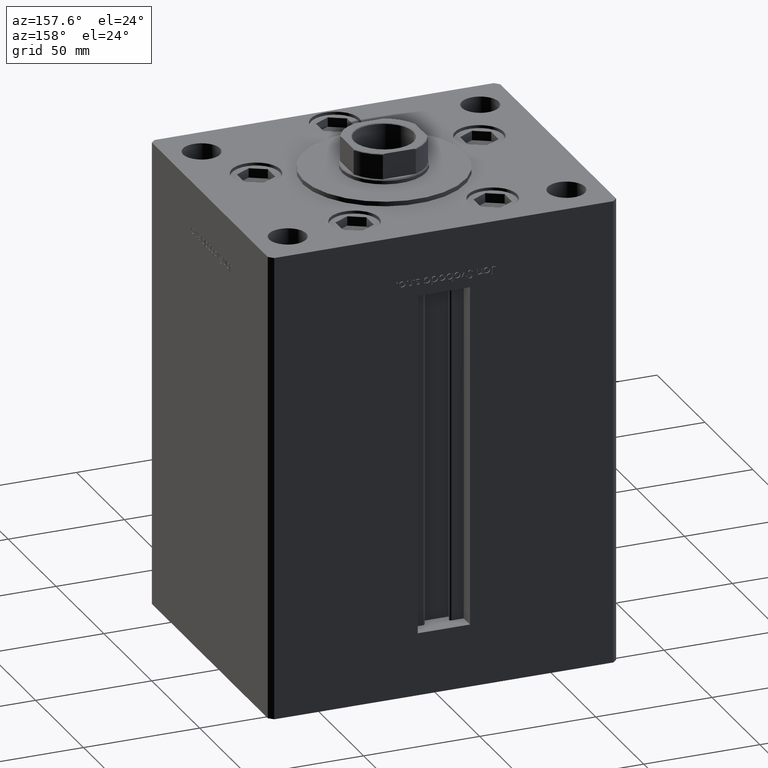
[diagram: clean part render]
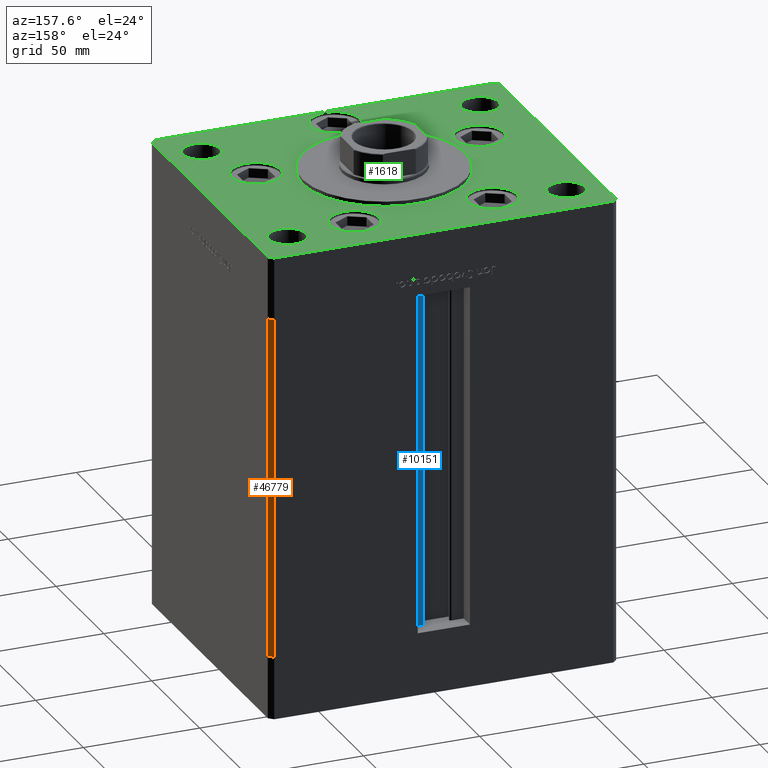
[diagram: same view with three faces highlighted in distinct colors, each labeled with its STEP entity id]
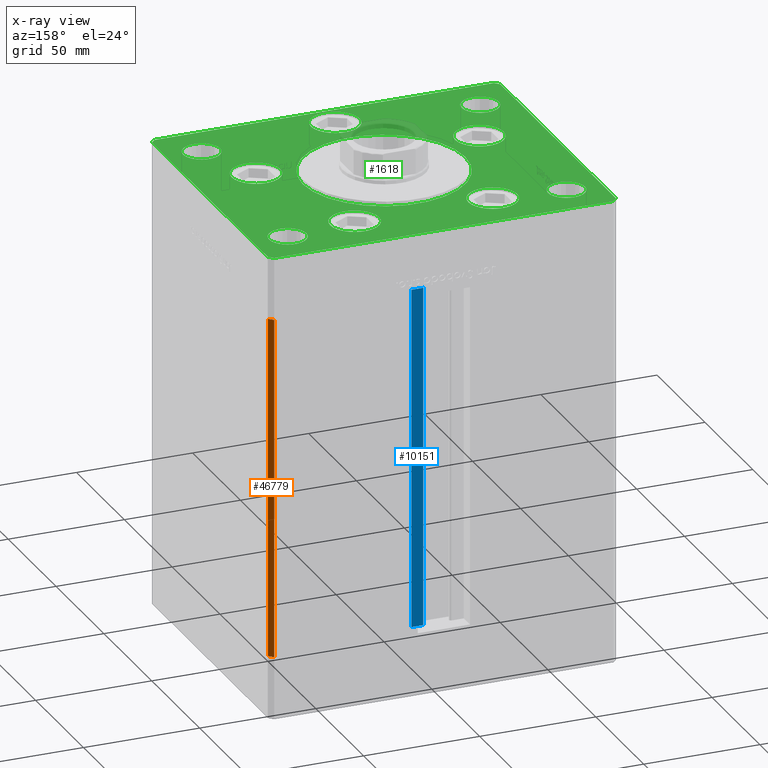
[diagram: x-ray of the same camera — body ghosted, the three highlighted faces saturated]
A machine part, auxiliary view with three faces highlighted in distinct colors.
The next image is the same camera in x-ray (body ghosted, the three faces saturated) — at least one of them is partly hidden behind the body in this view.
Their STEP definitions:

[orange] entity #46779 — the highlighted planar face has unit normal (0.7071, 0.7071, 0).
#5359 = CARTESIAN_POINT ( 'NONE',  ( 73.00000000000001421, 62.50000000000000000, 147.0000000000000000 ) ) ;
#6124 = ORIENTED_EDGE ( 'NONE', *, *, #37013, .T. ) ;
#7847 = CARTESIAN_POINT ( 'NONE',  ( 73.00000000000001421, 62.50000000000000000, 147.0000000000000000 ) ) ;
#8620 = VECTOR ( 'NONE', #28928, 1000.000000000000000 ) ;
#9455 = ORIENTED_EDGE ( 'NONE', *, *, #11162, .F. ) ;
#9590 = PLANE ( 'NONE',  #30280 ) ;
#11162 = EDGE_CURVE ( 'NONE', #40095, #22492, #22958, .T. ) ;
#11434 = EDGE_CURVE ( 'NONE', #17778, #40095, #36879, .T. ) ;
#11539 = EDGE_CURVE ( 'NONE', #17778, #22664, #16533, .T. ) ;
#12075 = DIRECTION ( 'NONE',  ( 0.7071067811865474617, -0.7071067811865474617, 0.000000000000000000 ) ) ;
#12666 = CARTESIAN_POINT ( 'NONE',  ( 73.00000000000001421, 62.50000000000000000, 147.0000000000000000 ) ) ;
#16533 = LINE ( 'NONE', #7847, #35783 ) ;
#17131 = DIRECTION ( 'NONE',  ( -0.000000000000000000, -0.000000000000000000, -1.000000000000000000 ) ) ;
#17778 = VERTEX_POINT ( 'NONE', #12666 ) ;
#19003 = DIRECTION ( 'NONE',  ( 0.7071067811865474617, -0.7071067811865474617, 0.000000000000000000 ) ) ;
#21451 = DIRECTION ( 'NONE',  ( 0.7071067811865475727, 0.7071067811865475727, -0.000000000000000000 ) ) ;
#21706 = DIRECTION ( 'NONE',  ( -0.7071067811865474617, 0.7071067811865474617, 0.000000000000000000 ) ) ;
#22492 = VERTEX_POINT ( 'NONE', #28408 ) ;
#22664 = VERTEX_POINT ( 'NONE', #25761 ) ;
#22958 = LINE ( 'NONE', #50883, #29900 ) ;
#25761 = CARTESIAN_POINT ( 'NONE',  ( 75.00000000000001421, 60.50000000000000000, 147.0000000000000000 ) ) ;
#26216 = ORIENTED_EDGE ( 'NONE', *, *, #11539, .T. ) ;
#28408 = CARTESIAN_POINT ( 'NONE',  ( 75.00000000000001421, 60.50000000000000000, 0.000000000000000000 ) ) ;
#28928 = DIRECTION ( 'NONE',  ( -0.000000000000000000, -0.000000000000000000, -1.000000000000000000 ) ) ;
#29443 = LINE ( 'NONE', #45516, #8620 ) ;
#29900 = VECTOR ( 'NONE', #19003, 1000.000000000000114 ) ;
#30280 = AXIS2_PLACEMENT_3D ( 'NONE', #5359, #21451, #21706 ) ;
#33720 = CARTESIAN_POINT ( 'NONE',  ( 73.00000000000001421, 62.50000000000000000, 147.0000000000000000 ) ) ;
#35783 = VECTOR ( 'NONE', #12075, 1000.000000000000114 ) ;
#36879 = LINE ( 'NONE', #33720, #49253 ) ;
#37013 = EDGE_CURVE ( 'NONE', #22664, #22492, #29443, .T. ) ;
#40095 = VERTEX_POINT ( 'NONE', #44582 ) ;
#44582 = CARTESIAN_POINT ( 'NONE',  ( 73.00000000000001421, 62.50000000000000000, 0.000000000000000000 ) ) ;
#45414 = FACE_OUTER_BOUND ( 'NONE', #50792, .T. ) ;
#45516 = CARTESIAN_POINT ( 'NONE',  ( 75.00000000000001421, 60.50000000000000000, 147.0000000000000000 ) ) ;
#46254 = ORIENTED_EDGE ( 'NONE', *, *, #11434, .F. ) ;
#46779 = ADVANCED_FACE ( 'NONE', ( #45414 ), #9590, .T. ) ;
#49253 = VECTOR ( 'NONE', #17131, 1000.000000000000000 ) ;
#50792 = EDGE_LOOP ( 'NONE', ( #9455, #46254, #26216, #6124 ) ) ;
#50883 = CARTESIAN_POINT ( 'NONE',  ( 73.00000000000001421, 62.50000000000000000, 0.000000000000000000 ) ) ;

[blue] entity #10151 — the highlighted planar face has unit normal (0, -1, 0).
#2125 = VECTOR ( 'NONE', #2924, 1000.000000000000000 ) ;
#2924 = DIRECTION ( 'NONE',  ( -1.000000000000000000, 0.000000000000000000, 0.000000000000000000 ) ) ;
#2998 = DIRECTION ( 'NONE',  ( -0.000000000000000000, -0.000000000000000000, 1.000000000000000000 ) ) ;
#3508 = CARTESIAN_POINT ( 'NONE',  ( 6.183333333334001480, 55.99999999999999289, 0.000000000000000000 ) ) ;
#3998 = LINE ( 'NONE', #32202, #34336 ) ;
#8395 = ORIENTED_EDGE ( 'NONE', *, *, #23654, .F. ) ;
#10151 = ADVANCED_FACE ( 'NONE', ( #24054 ), #47764, .F. ) ;
#11146 = EDGE_CURVE ( 'NONE', #22630, #33151, #38773, .T. ) ;
#19095 = DIRECTION ( 'NONE',  ( 1.000000000000000000, 0.000000000000000000, 0.000000000000000000 ) ) ;
#19466 = CARTESIAN_POINT ( 'NONE',  ( 6.183333333334001480, 55.99999999999999289, 0.000000000000000000 ) ) ;
#19494 = CARTESIAN_POINT ( 'NONE',  ( 6.183333333334001480, 55.99999999999999289, 147.0000000000000000 ) ) ;
#19636 = EDGE_CURVE ( 'NONE', #51210, #22630, #3998, .T. ) ;
#22630 = VERTEX_POINT ( 'NONE', #33668 ) ;
#23054 = CARTESIAN_POINT ( 'NONE',  ( 6.183333333334001480, 55.99999999999999289, 0.000000000000000000 ) ) ;
#23457 = CARTESIAN_POINT ( 'NONE',  ( 0.000000000000000000, 55.99999999999999289, 147.0000000000000000 ) ) ;
#23654 = EDGE_CURVE ( 'NONE', #51779, #51210, #27262, .T. ) ;
#24054 = FACE_OUTER_BOUND ( 'NONE', #47953, .T. ) ;
#24309 = DIRECTION ( 'NONE',  ( 0.000000000000000000, -1.000000000000000000, 0.000000000000000000 ) ) ;
#25467 = VECTOR ( 'NONE', #2998, 1000.000000000000000 ) ;
#27262 = LINE ( 'NONE', #23054, #33491 ) ;
#28014 = DIRECTION ( 'NONE',  ( 0.000000000000000000, -0.000000000000000000, -1.000000000000000000 ) ) ;
#29242 = ORIENTED_EDGE ( 'NONE', *, *, #43133, .T. ) ;
#31190 = LINE ( 'NONE', #3508, #25467 ) ;
#32202 = CARTESIAN_POINT ( 'NONE',  ( 11.25000000000000178, 55.99999999999999289, 0.000000000000000000 ) ) ;
#33151 = VERTEX_POINT ( 'NONE', #19494 ) ;
#33219 = CARTESIAN_POINT ( 'NONE',  ( 11.25000000000000178, 55.99999999999999289, 0.000000000000000000 ) ) ;
#33491 = VECTOR ( 'NONE', #19095, 1000.000000000000000 ) ;
#33668 = CARTESIAN_POINT ( 'NONE',  ( 11.25000000000000178, 55.99999999999999289, 147.0000000000000000 ) ) ;
#34336 = VECTOR ( 'NONE', #48268, 1000.000000000000000 ) ;
#38159 = ORIENTED_EDGE ( 'NONE', *, *, #19636, .F. ) ;
#38773 = LINE ( 'NONE', #23457, #2125 ) ;
#43133 = EDGE_CURVE ( 'NONE', #51779, #33151, #31190, .T. ) ;
#43363 = ORIENTED_EDGE ( 'NONE', *, *, #11146, .F. ) ;
#43821 = CARTESIAN_POINT ( 'NONE',  ( 6.183333333334001480, 55.99999999999999289, 0.000000000000000000 ) ) ;
#45012 = AXIS2_PLACEMENT_3D ( 'NONE', #43821, #24309, #28014 ) ;
#47764 = PLANE ( 'NONE',  #45012 ) ;
#47953 = EDGE_LOOP ( 'NONE', ( #38159, #8395, #29242, #43363 ) ) ;
#48268 = DIRECTION ( 'NONE',  ( -0.000000000000000000, -0.000000000000000000, 1.000000000000000000 ) ) ;
#51210 = VERTEX_POINT ( 'NONE', #33219 ) ;
#51779 = VERTEX_POINT ( 'NONE', #19466 ) ;

[green] entity #1618 — the highlighted planar face has unit normal (0, 0, 1).
#232 = DIRECTION ( 'NONE',  ( -0.000000000000000000, -0.000000000000000000, -1.000000000000000000 ) ) ;
#345 = VERTEX_POINT ( 'NONE', #33028 ) ;
#404 = EDGE_CURVE ( 'NONE', #5860, #36352, #40485, .T. ) ;
#874 = CARTESIAN_POINT ( 'NONE',  ( 60.00000000000000711, -45.00000000000000000, 0.000000000000000000 ) ) ;
#1205 = DIRECTION ( 'NONE',  ( 0.000000000000000000, 0.000000000000000000, 1.000000000000000000 ) ) ;
#1297 = EDGE_LOOP ( 'NONE', ( #50577, #8475 ) ) ;
#1400 = CARTESIAN_POINT ( 'NONE',  ( 60.00000000000000000, 45.00000000000000000, 0.000000000000000000 ) ) ;
#1593 = ORIENTED_EDGE ( 'NONE', *, *, #36532, .F. ) ;
#1618 = ADVANCED_FACE ( 'NONE', ( #30648, #17750, #46198, #46459, #18530, #34606, #22232, #34863, #10623, #33827, #22735 ), #42762, .T. ) ;
#1846 = AXIS2_PLACEMENT_3D ( 'NONE', #19775, #44278, #39804 ) ;
#1921 = VERTEX_POINT ( 'NONE', #2635 ) ;
#1934 = CARTESIAN_POINT ( 'NONE',  ( 0.000000000000000000, 0.000000000000000000, 0.000000000000000000 ) ) ;
#1949 = CARTESIAN_POINT ( 'NONE',  ( 73.00000000000001421, 62.50000000000000000, 0.000000000000000000 ) ) ;
#1959 = ORIENTED_EDGE ( 'NONE', *, *, #29607, .F. ) ;
#1985 = CARTESIAN_POINT ( 'NONE',  ( -19.23102073172061566, 41.43749999999997868, 0.000000000000000000 ) ) ;
#2097 = CARTESIAN_POINT ( 'NONE',  ( -73.00000000000001421, -62.50000000000002842, 0.000000000000000000 ) ) ;
#2136 = CARTESIAN_POINT ( 'NONE',  ( 58.58326112068523628, -16.99999999999998934, 0.000000000000000000 ) ) ;
#2635 = CARTESIAN_POINT ( 'NONE',  ( 37.58326112068522917, -16.99999999999998934, 0.000000000000000000 ) ) ;
#3009 = CARTESIAN_POINT ( 'NONE',  ( 35.00000000000000711, -2.652630106891490698E-15, 0.000000000000000000 ) ) ;
#3724 = VERTEX_POINT ( 'NONE', #18277 ) ;
#3764 = EDGE_CURVE ( 'NONE', #36352, #5860, #43941, .T. ) ;
#3816 = DIRECTION ( 'NONE',  ( 1.000000000000000000, 0.000000000000000000, 0.000000000000000000 ) ) ;
#3855 = VERTEX_POINT ( 'NONE', #50673 ) ;
#3989 = CIRCLE ( 'NONE', #33458, 8.000000000000007105 ) ;
#4144 = CARTESIAN_POINT ( 'NONE',  ( -48.08326112068523628, -16.99999999999998934, 0.000000000000000000 ) ) ;
#5485 = EDGE_CURVE ( 'NONE', #44121, #12105, #8669, .T. ) ;
#5860 = VERTEX_POINT ( 'NONE', #25541 ) ;
#5950 = AXIS2_PLACEMENT_3D ( 'NONE', #19288, #31409, #46970 ) ;
#6314 = LINE ( 'NONE', #2097, #22020 ) ;
#6456 = VECTOR ( 'NONE', #36626, 999.9999999999998863 ) ;
#6589 = AXIS2_PLACEMENT_3D ( 'NONE', #41809, #26518, #25738 ) ;
#6653 = DIRECTION ( 'NONE',  ( -0.000000000000000000, 0.000000000000000000, 1.000000000000000000 ) ) ;
#6969 = DIRECTION ( 'NONE',  ( 1.000000000000000000, 0.000000000000000000, 0.000000000000000000 ) ) ;
#7033 = EDGE_CURVE ( 'NONE', #7103, #345, #40677, .T. ) ;
#7103 = VERTEX_POINT ( 'NONE', #51834 ) ;
#7114 = AXIS2_PLACEMENT_3D ( 'NONE', #27100, #7578, #51319 ) ;
#7243 = CARTESIAN_POINT ( 'NONE',  ( 0.000000000000000000, -51.00000000000000000, 0.000000000000000000 ) ) ;
#7469 = CARTESIAN_POINT ( 'NONE',  ( 10.50000000000000000, -51.00000000000000000, 0.000000000000000000 ) ) ;
#7578 = DIRECTION ( 'NONE',  ( 0.000000000000000000, 0.000000000000000000, 1.000000000000000000 ) ) ;
#7772 = DIRECTION ( 'NONE',  ( 1.000000000000000000, 0.000000000000000000, 0.000000000000000000 ) ) ;
#7778 = VECTOR ( 'NONE', #48876, 1000.000000000000000 ) ;
#8110 = ORIENTED_EDGE ( 'NONE', *, *, #49037, .F. ) ;
#8303 = DIRECTION ( 'NONE',  ( 0.000000000000000000, -1.000000000000000000, 0.000000000000000000 ) ) ;
#8475 = ORIENTED_EDGE ( 'NONE', *, *, #46652, .T. ) ;
#8496 = DIRECTION ( 'NONE',  ( 0.000000000000000000, 0.000000000000000000, 1.000000000000000000 ) ) ;
#8669 = CIRCLE ( 'NONE', #37304, 10.50000000000000000 ) ;
#9107 = EDGE_CURVE ( 'NONE', #22708, #16206, #44972, .T. ) ;
#9221 = CIRCLE ( 'NONE', #52124, 10.50000000000000178 ) ;
#9583 = CARTESIAN_POINT ( 'NONE',  ( 68.00000000000000000, -45.00000000000000000, 0.000000000000000000 ) ) ;
#9904 = EDGE_CURVE ( 'NONE', #19649, #22783, #28185, .T. ) ;
#10127 = VECTOR ( 'NONE', #29093, 1000.000000000000000 ) ;
#10623 = FACE_BOUND ( 'NONE', #47524, .T. ) ;
#10990 = AXIS2_PLACEMENT_3D ( 'NONE', #33364, #1205, #20981 ) ;
#11104 = CARTESIAN_POINT ( 'NONE',  ( 29.73102073172061921, 41.43749999999997868, 0.000000000000000000 ) ) ;
#11172 = CARTESIAN_POINT ( 'NONE',  ( 0.000000000000000000, -6.938893903907228378E-15, 0.000000000000000000 ) ) ;
#11383 = ORIENTED_EDGE ( 'NONE', *, *, #33334, .T. ) ;
#11950 = CARTESIAN_POINT ( 'NONE',  ( -60.00000000000000711, -45.00000000000000000, 0.000000000000000000 ) ) ;
#12041 = CARTESIAN_POINT ( 'NONE',  ( 73.00000000000001421, 62.50000000000000000, 0.000000000000000000 ) ) ;
#12105 = VERTEX_POINT ( 'NONE', #15116 ) ;
#12177 = CARTESIAN_POINT ( 'NONE',  ( -40.23102073172061921, 41.43749999999997868, 0.000000000000000000 ) ) ;
#12281 = VERTEX_POINT ( 'NONE', #25033 ) ;
#12414 = CARTESIAN_POINT ( 'NONE',  ( 60.00000000000000711, -45.00000000000000000, 0.000000000000000000 ) ) ;
#12954 = VERTEX_POINT ( 'NONE', #15967 ) ;
#13027 = LINE ( 'NONE', #1949, #10127 ) ;
#13550 = EDGE_CURVE ( 'NONE', #15782, #20450, #19022, .T. ) ;
#13612 = AXIS2_PLACEMENT_3D ( 'NONE', #1934, #6653, #50917 ) ;
#13752 = CARTESIAN_POINT ( 'NONE',  ( 48.08326112068523628, -16.99999999999998934, 0.000000000000000000 ) ) ;
#13787 = DIRECTION ( 'NONE',  ( 1.000000000000000000, 0.000000000000000000, 0.000000000000000000 ) ) ;
#14016 = EDGE_CURVE ( 'NONE', #32812, #32446, #21577, .T. ) ;
#14120 = ORIENTED_EDGE ( 'NONE', *, *, #14016, .F. ) ;
#14303 = AXIS2_PLACEMENT_3D ( 'NONE', #874, #18026, #25655 ) ;
#14312 = EDGE_LOOP ( 'NONE', ( #24449, #1959 ) ) ;
#14544 = EDGE_CURVE ( 'NONE', #39059, #12954, #46843, .T. ) ;
#14572 = EDGE_CURVE ( 'NONE', #45419, #12281, #44274, .T. ) ;
#14965 = DIRECTION ( 'NONE',  ( 0.7071067811865474617, -0.7071067811865474617, 0.000000000000000000 ) ) ;
#15116 = CARTESIAN_POINT ( 'NONE',  ( -10.50000000000000000, -51.00000000000000000, 0.000000000000000000 ) ) ;
#15606 = DIRECTION ( 'NONE',  ( 0.000000000000000000, 0.000000000000000000, 1.000000000000000000 ) ) ;
#15671 = EDGE_LOOP ( 'NONE', ( #1593, #30379 ) ) ;
#15782 = VERTEX_POINT ( 'NONE', #33669 ) ;
#15967 = CARTESIAN_POINT ( 'NONE',  ( 40.23102073172061921, 41.43749999999997868, 0.000000000000000000 ) ) ;
#16031 = CIRCLE ( 'NONE', #5950, 10.50000000000000178 ) ;
#16206 = VERTEX_POINT ( 'NONE', #3009 ) ;
#16330 = DIRECTION ( 'NONE',  ( -1.000000000000000000, 0.000000000000000000, 0.000000000000000000 ) ) ;
#16711 = VECTOR ( 'NONE', #14965, 1000.000000000000114 ) ;
#16801 = CIRCLE ( 'NONE', #14303, 8.000000000000007105 ) ;
#16888 = DIRECTION ( 'NONE',  ( -0.000000000000000000, -0.000000000000000000, -1.000000000000000000 ) ) ;
#16929 = CARTESIAN_POINT ( 'NONE',  ( -60.00000000000000711, -45.00000000000000000, 0.000000000000000000 ) ) ;
#17161 = ORIENTED_EDGE ( 'NONE', *, *, #404, .F. ) ;
#17477 = CIRCLE ( 'NONE', #31037, 10.50000000000000178 ) ;
#17707 = CARTESIAN_POINT ( 'NONE',  ( -75.00000000000000000, -60.50000000000004263, 0.000000000000000000 ) ) ;
#17750 = FACE_BOUND ( 'NONE', #38880, .T. ) ;
#18026 = DIRECTION ( 'NONE',  ( -0.000000000000000000, -0.000000000000000000, -1.000000000000000000 ) ) ;
#18184 = DIRECTION ( 'NONE',  ( 1.000000000000000000, 7.604267291953125828E-16, 0.000000000000000000 ) ) ;
#18277 = CARTESIAN_POINT ( 'NONE',  ( 52.00000000000000000, -45.00000000000000000, 0.000000000000000000 ) ) ;
#18380 = ORIENTED_EDGE ( 'NONE', *, *, #22114, .F. ) ;
#18464 = EDGE_CURVE ( 'NONE', #38101, #3724, #3989, .T. ) ;
#18491 = VECTOR ( 'NONE', #8303, 1000.000000000000000 ) ;
#18507 = CARTESIAN_POINT ( 'NONE',  ( -29.73102073172061921, 41.43749999999997868, 0.000000000000000000 ) ) ;
#18530 = FACE_BOUND ( 'NONE', #28518, .T. ) ;
#18596 = CIRCLE ( 'NONE', #37957, 8.000000000000000000 ) ;
#19020 = LINE ( 'NONE', #31134, #39568 ) ;
#19022 = LINE ( 'NONE', #31644, #27427 ) ;
#19059 = VERTEX_POINT ( 'NONE', #12041 ) ;
#19288 = CARTESIAN_POINT ( 'NONE',  ( -48.08326112068523628, -16.99999999999998934, 0.000000000000000000 ) ) ;
#19367 = DIRECTION ( 'NONE',  ( 0.000000000000000000, 0.000000000000000000, 1.000000000000000000 ) ) ;
#19369 = DIRECTION ( 'NONE',  ( 0.000000000000000000, 0.000000000000000000, 1.000000000000000000 ) ) ;
#19433 = CARTESIAN_POINT ( 'NONE',  ( -75.00000000000000000, -60.50000000000004263, 0.000000000000000000 ) ) ;
#19577 = EDGE_CURVE ( 'NONE', #27755, #1921, #25062, .T. ) ;
#19649 = VERTEX_POINT ( 'NONE', #12177 ) ;
#19775 = CARTESIAN_POINT ( 'NONE',  ( 29.73102073172061921, 41.43749999999997868, 0.000000000000000000 ) ) ;
#20030 = ORIENTED_EDGE ( 'NONE', *, *, #29289, .T. ) ;
#20450 = VERTEX_POINT ( 'NONE', #30977 ) ;
#20726 = ORIENTED_EDGE ( 'NONE', *, *, #14572, .T. ) ;
#20972 = EDGE_CURVE ( 'NONE', #41979, #21364, #43412, .T. ) ;
#20981 = DIRECTION ( 'NONE',  ( 1.000000000000000000, 0.000000000000000000, 0.000000000000000000 ) ) ;
#21142 = EDGE_CURVE ( 'NONE', #29097, #26657, #28478, .T. ) ;
#21364 = VERTEX_POINT ( 'NONE', #44926 ) ;
#21577 = CIRCLE ( 'NONE', #51013, 8.000000000000000000 ) ;
#21894 = ORIENTED_EDGE ( 'NONE', *, *, #31432, .F. ) ;
#22020 = VECTOR ( 'NONE', #18184, 1000.000000000000000 ) ;
#22114 = EDGE_CURVE ( 'NONE', #22783, #19649, #17477, .T. ) ;
#22232 = FACE_BOUND ( 'NONE', #36996, .T. ) ;
#22708 = VERTEX_POINT ( 'NONE', #23602 ) ;
#22735 = FACE_BOUND ( 'NONE', #1297, .T. ) ;
#22783 = VERTEX_POINT ( 'NONE', #1985 ) ;
#23602 = CARTESIAN_POINT ( 'NONE',  ( -35.00000000000000711, -6.938893903907228378E-15, 0.000000000000000000 ) ) ;
#23813 = CARTESIAN_POINT ( 'NONE',  ( 60.00000000000000000, 45.00000000000000000, 0.000000000000000000 ) ) ;
#23853 = LINE ( 'NONE', #39399, #18491 ) ;
#24056 = DIRECTION ( 'NONE',  ( 0.000000000000000000, 0.000000000000000000, 1.000000000000000000 ) ) ;
#24101 = CARTESIAN_POINT ( 'NONE',  ( 0.000000000000000000, -6.938893903907228378E-15, 0.000000000000000000 ) ) ;
#24122 = ORIENTED_EDGE ( 'NONE', *, *, #21142, .T. ) ;
#24239 = CARTESIAN_POINT ( 'NONE',  ( 73.00000000000001421, -62.49999999999991473, 0.000000000000000000 ) ) ;
#24449 = ORIENTED_EDGE ( 'NONE', *, *, #19577, .F. ) ;
#24534 = DIRECTION ( 'NONE',  ( -1.000000000000000000, 0.000000000000000000, 0.000000000000000000 ) ) ;
#24564 = CIRCLE ( 'NONE', #1846, 10.50000000000000178 ) ;
#24570 = DIRECTION ( 'NONE',  ( 1.000000000000000000, 0.000000000000000000, 0.000000000000000000 ) ) ;
#24730 = EDGE_LOOP ( 'NONE', ( #46393, #45720 ) ) ;
#25033 = CARTESIAN_POINT ( 'NONE',  ( 75.00000000000001421, -60.49999999999992184, 0.000000000000000000 ) ) ;
#25062 = CIRCLE ( 'NONE', #40211, 10.50000000000000178 ) ;
#25447 = AXIS2_PLACEMENT_3D ( 'NONE', #1400, #34345, #42253 ) ;
#25541 = CARTESIAN_POINT ( 'NONE',  ( 51.99999999999999289, 45.00000000000000000, 0.000000000000000000 ) ) ;
#25655 = DIRECTION ( 'NONE',  ( -1.000000000000000000, 0.000000000000000000, 0.000000000000000000 ) ) ;
#25738 = DIRECTION ( 'NONE',  ( -1.000000000000000000, 0.000000000000000000, 0.000000000000000000 ) ) ;
#26518 = DIRECTION ( 'NONE',  ( -0.000000000000000000, -0.000000000000000000, -1.000000000000000000 ) ) ;
#26657 = VERTEX_POINT ( 'NONE', #30283 ) ;
#27100 = CARTESIAN_POINT ( 'NONE',  ( -29.73102073172061921, 41.43749999999997868, 0.000000000000000000 ) ) ;
#27427 = VECTOR ( 'NONE', #35861, 1000.000000000000000 ) ;
#27755 = VERTEX_POINT ( 'NONE', #2136 ) ;
#28185 = CIRCLE ( 'NONE', #7114, 10.50000000000000178 ) ;
#28478 = CIRCLE ( 'NONE', #6589, 7.999999999999992895 ) ;
#28518 = EDGE_LOOP ( 'NONE', ( #46576, #21894 ) ) ;
#28689 = CIRCLE ( 'NONE', #32033, 35.00000000000000711 ) ;
#29093 = DIRECTION ( 'NONE',  ( -1.000000000000000000, -1.901066822988281950E-16, 0.000000000000000000 ) ) ;
#29097 = VERTEX_POINT ( 'NONE', #32599 ) ;
#29281 = DIRECTION ( 'NONE',  ( 1.000000000000000000, 0.000000000000000000, 0.000000000000000000 ) ) ;
#29289 = EDGE_CURVE ( 'NONE', #20450, #41979, #23853, .T. ) ;
#29607 = EDGE_CURVE ( 'NONE', #1921, #27755, #9221, .T. ) ;
#30065 = EDGE_CURVE ( 'NONE', #12281, #3855, #19020, .T. ) ;
#30283 = CARTESIAN_POINT ( 'NONE',  ( -52.00000000000000000, 45.00000000000000711, 0.000000000000000000 ) ) ;
#30379 = ORIENTED_EDGE ( 'NONE', *, *, #14544, .F. ) ;
#30648 = FACE_BOUND ( 'NONE', #47442, .T. ) ;
#30805 = ORIENTED_EDGE ( 'NONE', *, *, #50477, .T. ) ;
#30977 = CARTESIAN_POINT ( 'NONE',  ( -75.00000000000000000, 60.50000000000000000, 0.000000000000000000 ) ) ;
#31037 = AXIS2_PLACEMENT_3D ( 'NONE', #18507, #49600, #13787 ) ;
#31134 = CARTESIAN_POINT ( 'NONE',  ( 75.00000000000001421, -60.49999999999992184, 0.000000000000000000 ) ) ;
#31156 = DIRECTION ( 'NONE',  ( 1.000000000000000000, 0.000000000000000000, 0.000000000000000000 ) ) ;
#31409 = DIRECTION ( 'NONE',  ( 0.000000000000000000, 0.000000000000000000, 1.000000000000000000 ) ) ;
#31432 = EDGE_CURVE ( 'NONE', #12105, #44121, #37095, .T. ) ;
#31626 = DIRECTION ( 'NONE',  ( 0.000000000000000000, 0.000000000000000000, 1.000000000000000000 ) ) ;
#31644 = CARTESIAN_POINT ( 'NONE',  ( -72.99999999999998579, 62.49999999999997158, 0.000000000000000000 ) ) ;
#32033 = AXIS2_PLACEMENT_3D ( 'NONE', #11172, #35138, #46748 ) ;
#32209 = EDGE_CURVE ( 'NONE', #345, #7103, #16031, .T. ) ;
#32234 = DIRECTION ( 'NONE',  ( 1.000000000000000000, 0.000000000000000000, 0.000000000000000000 ) ) ;
#32446 = VERTEX_POINT ( 'NONE', #49692 ) ;
#32599 = CARTESIAN_POINT ( 'NONE',  ( -67.99999999999998579, 45.00000000000000711, 0.000000000000000000 ) ) ;
#32812 = VERTEX_POINT ( 'NONE', #39318 ) ;
#32917 = AXIS2_PLACEMENT_3D ( 'NONE', #36346, #232, #16330 ) ;
#33028 = CARTESIAN_POINT ( 'NONE',  ( -58.58326112068523628, -16.99999999999998934, 0.000000000000000000 ) ) ;
#33334 = EDGE_CURVE ( 'NONE', #26657, #29097, #43862, .T. ) ;
#33364 = CARTESIAN_POINT ( 'NONE',  ( 0.000000000000000000, -51.00000000000000000, 0.000000000000000000 ) ) ;
#33458 = AXIS2_PLACEMENT_3D ( 'NONE', #12414, #16888, #24534 ) ;
#33669 = CARTESIAN_POINT ( 'NONE',  ( -72.99999999999998579, 62.49999999999997158, 0.000000000000000000 ) ) ;
#33827 = FACE_OUTER_BOUND ( 'NONE', #36758, .T. ) ;
#34345 = DIRECTION ( 'NONE',  ( 0.000000000000000000, 0.000000000000000000, 1.000000000000000000 ) ) ;
#34606 = FACE_BOUND ( 'NONE', #24730, .T. ) ;
#34863 = FACE_BOUND ( 'NONE', #39081, .T. ) ;
#35079 = CARTESIAN_POINT ( 'NONE',  ( 68.00000000000000000, 45.00000000000000000, 0.000000000000000000 ) ) ;
#35091 = DIRECTION ( 'NONE',  ( 0.000000000000000000, 1.000000000000000000, 0.000000000000000000 ) ) ;
#35138 = DIRECTION ( 'NONE',  ( 0.000000000000000000, 0.000000000000000000, 1.000000000000000000 ) ) ;
#35861 = DIRECTION ( 'NONE',  ( -0.7071067811865549002, -0.7071067811865401342, 0.000000000000000000 ) ) ;
#36132 = CARTESIAN_POINT ( 'NONE',  ( 73.00000000000001421, -62.49999999999991473, 0.000000000000000000 ) ) ;
#36346 = CARTESIAN_POINT ( 'NONE',  ( -60.00000000000000000, 45.00000000000000711, 0.000000000000000000 ) ) ;
#36352 = VERTEX_POINT ( 'NONE', #35079 ) ;
#36532 = EDGE_CURVE ( 'NONE', #12954, #39059, #24564, .T. ) ;
#36626 = DIRECTION ( 'NONE',  ( 0.7071067811865489050, 0.7071067811865462405, 0.000000000000000000 ) ) ;
#36758 = EDGE_LOOP ( 'NONE', ( #43751, #30805, #20726, #37354, #49274, #46114, #47777, #20030 ) ) ;
#36996 = EDGE_LOOP ( 'NONE', ( #11383, #24122 ) ) ;
#37095 = CIRCLE ( 'NONE', #10990, 10.50000000000000000 ) ;
#37304 = AXIS2_PLACEMENT_3D ( 'NONE', #7243, #19367, #3816 ) ;
#37354 = ORIENTED_EDGE ( 'NONE', *, *, #30065, .T. ) ;
#37957 = AXIS2_PLACEMENT_3D ( 'NONE', #11950, #24056, #32234 ) ;
#37982 = DIRECTION ( 'NONE',  ( 0.000000000000000000, 0.000000000000000000, 1.000000000000000000 ) ) ;
#38101 = VERTEX_POINT ( 'NONE', #9583 ) ;
#38284 = ORIENTED_EDGE ( 'NONE', *, *, #50041, .F. ) ;
#38880 = EDGE_LOOP ( 'NONE', ( #18380, #43264 ) ) ;
#39059 = VERTEX_POINT ( 'NONE', #42830 ) ;
#39081 = EDGE_LOOP ( 'NONE', ( #40695, #17161 ) ) ;
#39318 = CARTESIAN_POINT ( 'NONE',  ( -68.00000000000000000, -45.00000000000000000, 0.000000000000000000 ) ) ;
#39399 = CARTESIAN_POINT ( 'NONE',  ( -75.00000000000000000, 60.50000000000000000, 0.000000000000000000 ) ) ;
#39568 = VECTOR ( 'NONE', #35091, 1000.000000000000000 ) ;
#39804 = DIRECTION ( 'NONE',  ( 1.000000000000000000, 0.000000000000000000, 0.000000000000000000 ) ) ;
#39842 = CARTESIAN_POINT ( 'NONE',  ( 48.08326112068523628, -16.99999999999998934, 0.000000000000000000 ) ) ;
#39988 = DIRECTION ( 'NONE',  ( 0.000000000000000000, 0.000000000000000000, 1.000000000000000000 ) ) ;
#40211 = AXIS2_PLACEMENT_3D ( 'NONE', #39842, #15606, #31156 ) ;
#40485 = CIRCLE ( 'NONE', #48082, 8.000000000000007105 ) ;
#40509 = DIRECTION ( 'NONE',  ( 1.000000000000000000, 0.000000000000000000, 0.000000000000000000 ) ) ;
#40677 = CIRCLE ( 'NONE', #48269, 10.50000000000000178 ) ;
#40695 = ORIENTED_EDGE ( 'NONE', *, *, #3764, .F. ) ;
#40753 = AXIS2_PLACEMENT_3D ( 'NONE', #24101, #19369, #7772 ) ;
#41809 = CARTESIAN_POINT ( 'NONE',  ( -60.00000000000000000, 45.00000000000000711, 0.000000000000000000 ) ) ;
#41979 = VERTEX_POINT ( 'NONE', #17707 ) ;
#42253 = DIRECTION ( 'NONE',  ( 1.000000000000000000, 0.000000000000000000, 0.000000000000000000 ) ) ;
#42387 = EDGE_CURVE ( 'NONE', #3855, #19059, #49391, .T. ) ;
#42762 = PLANE ( 'NONE',  #13612 ) ;
#42830 = CARTESIAN_POINT ( 'NONE',  ( 19.23102073172061566, 41.43749999999997868, 0.000000000000000000 ) ) ;
#43264 = ORIENTED_EDGE ( 'NONE', *, *, #9904, .F. ) ;
#43412 = LINE ( 'NONE', #19433, #16711 ) ;
#43751 = ORIENTED_EDGE ( 'NONE', *, *, #20972, .T. ) ;
#43862 = CIRCLE ( 'NONE', #32917, 7.999999999999992895 ) ;
#43941 = CIRCLE ( 'NONE', #25447, 8.000000000000007105 ) ;
#44121 = VERTEX_POINT ( 'NONE', #7469 ) ;
#44274 = LINE ( 'NONE', #24239, #6456 ) ;
#44278 = DIRECTION ( 'NONE',  ( 0.000000000000000000, 0.000000000000000000, 1.000000000000000000 ) ) ;
#44926 = CARTESIAN_POINT ( 'NONE',  ( -73.00000000000001421, -62.50000000000002842, 0.000000000000000000 ) ) ;
#44972 = CIRCLE ( 'NONE', #40753, 35.00000000000000711 ) ;
#45154 = AXIS2_PLACEMENT_3D ( 'NONE', #11104, #31626, #51901 ) ;
#45181 = CARTESIAN_POINT ( 'NONE',  ( 75.00000000000001421, 60.50000000000002842, 0.000000000000000000 ) ) ;
#45419 = VERTEX_POINT ( 'NONE', #36132 ) ;
#45720 = ORIENTED_EDGE ( 'NONE', *, *, #32209, .F. ) ;
#46114 = ORIENTED_EDGE ( 'NONE', *, *, #47606, .T. ) ;
#46198 = FACE_BOUND ( 'NONE', #15671, .T. ) ;
#46393 = ORIENTED_EDGE ( 'NONE', *, *, #7033, .F. ) ;
#46459 = FACE_BOUND ( 'NONE', #14312, .T. ) ;
#46576 = ORIENTED_EDGE ( 'NONE', *, *, #5485, .F. ) ;
#46652 = EDGE_CURVE ( 'NONE', #3724, #38101, #16801, .T. ) ;
#46748 = DIRECTION ( 'NONE',  ( 1.000000000000000000, 0.000000000000000000, 0.000000000000000000 ) ) ;
#46843 = CIRCLE ( 'NONE', #45154, 10.50000000000000178 ) ;
#46970 = DIRECTION ( 'NONE',  ( 1.000000000000000000, 0.000000000000000000, 0.000000000000000000 ) ) ;
#47442 = EDGE_LOOP ( 'NONE', ( #49379, #8110 ) ) ;
#47524 = EDGE_LOOP ( 'NONE', ( #38284, #14120 ) ) ;
#47606 = EDGE_CURVE ( 'NONE', #19059, #15782, #13027, .T. ) ;
#47777 = ORIENTED_EDGE ( 'NONE', *, *, #13550, .T. ) ;
#47784 = DIRECTION ( 'NONE',  ( 0.000000000000000000, 0.000000000000000000, 1.000000000000000000 ) ) ;
#48082 = AXIS2_PLACEMENT_3D ( 'NONE', #23813, #47784, #6969 ) ;
#48269 = AXIS2_PLACEMENT_3D ( 'NONE', #4144, #39988, #40509 ) ;
#48876 = DIRECTION ( 'NONE',  ( -0.7071067811865524577, 0.7071067811865426878, 0.000000000000000000 ) ) ;
#49037 = EDGE_CURVE ( 'NONE', #16206, #22708, #28689, .T. ) ;
#49274 = ORIENTED_EDGE ( 'NONE', *, *, #42387, .T. ) ;
#49379 = ORIENTED_EDGE ( 'NONE', *, *, #9107, .F. ) ;
#49391 = LINE ( 'NONE', #45181, #7778 ) ;
#49600 = DIRECTION ( 'NONE',  ( 0.000000000000000000, 0.000000000000000000, 1.000000000000000000 ) ) ;
#49692 = CARTESIAN_POINT ( 'NONE',  ( -52.00000000000000711, -45.00000000000000000, 0.000000000000000000 ) ) ;
#50041 = EDGE_CURVE ( 'NONE', #32446, #32812, #18596, .T. ) ;
#50477 = EDGE_CURVE ( 'NONE', #21364, #45419, #6314, .T. ) ;
#50577 = ORIENTED_EDGE ( 'NONE', *, *, #18464, .T. ) ;
#50673 = CARTESIAN_POINT ( 'NONE',  ( 75.00000000000001421, 60.50000000000002842, 0.000000000000000000 ) ) ;
#50917 = DIRECTION ( 'NONE',  ( 1.000000000000000000, 0.000000000000000000, 0.000000000000000000 ) ) ;
#51013 = AXIS2_PLACEMENT_3D ( 'NONE', #16929, #8496, #24570 ) ;
#51319 = DIRECTION ( 'NONE',  ( 1.000000000000000000, 0.000000000000000000, 0.000000000000000000 ) ) ;
#51834 = CARTESIAN_POINT ( 'NONE',  ( -37.58326112068522917, -16.99999999999998934, 0.000000000000000000 ) ) ;
#51901 = DIRECTION ( 'NONE',  ( 1.000000000000000000, 0.000000000000000000, 0.000000000000000000 ) ) ;
#52124 = AXIS2_PLACEMENT_3D ( 'NONE', #13752, #37982, #29281 ) ;